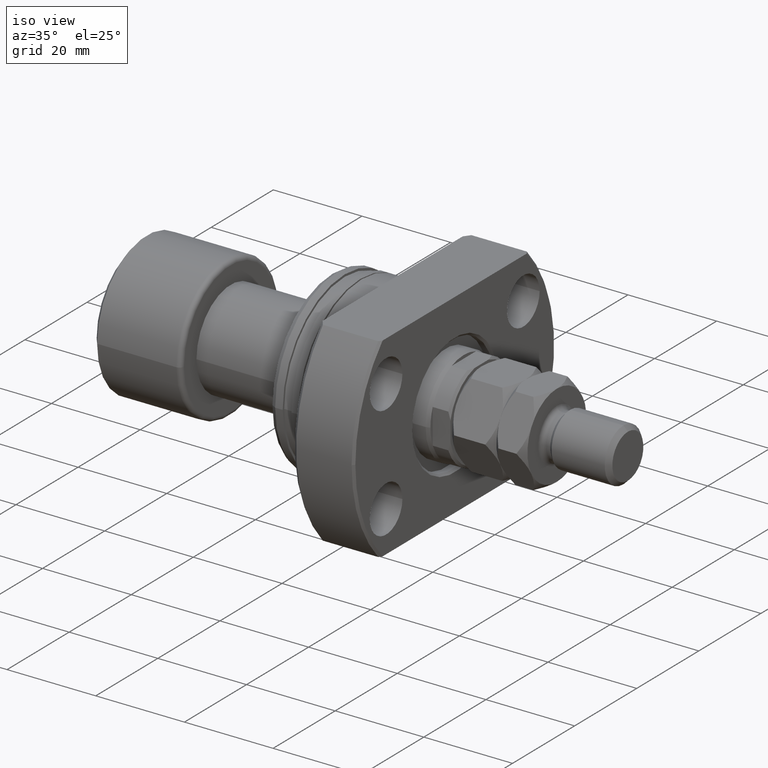
[diagram: clean part render]
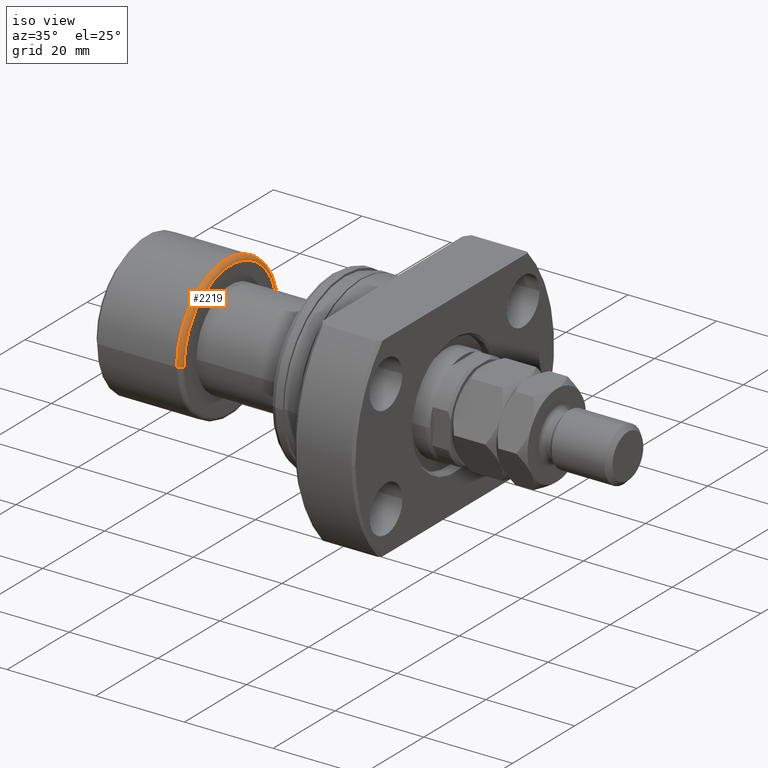
[diagram: same view with one face highlighted and labeled with its STEP entity id]
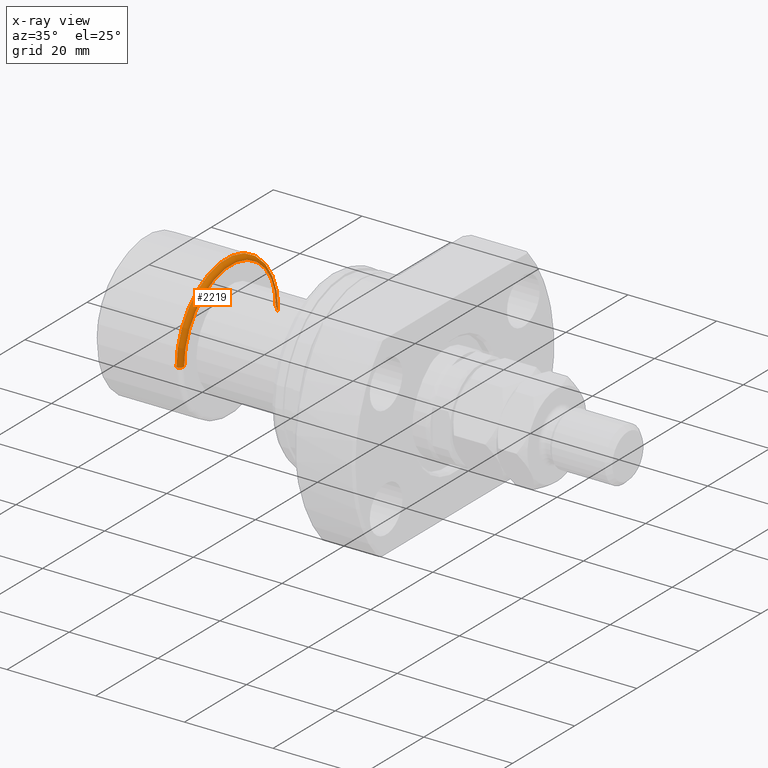
[diagram: x-ray of the same camera — body ghosted, the highlighted face saturated]
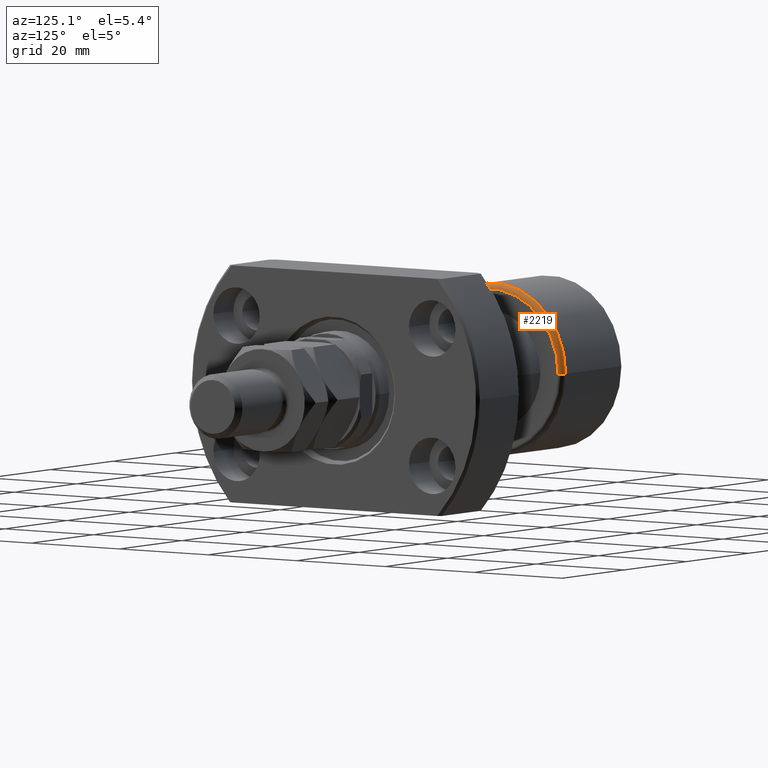
[diagram: same view with one face highlighted and labeled with its STEP entity id]
A machine part, iso view. The second image highlights one B-rep face of the part: STEP entity #2219.
The next image is the same camera in x-ray: the body ghosted, the highlighted face saturated — about 3% of this face is hidden behind the body in this view.
A second angle (auxiliary view) of the same face is appended — the face is thin or edge-on in the first view.
In plain terms, the highlighted toroidal blend (fillet) surface has major radius 15 mm and minor (blend) radius 1 mm.
Its self-contained STEP definition (entity closure, byte-faithful):
#93 = CARTESIAN_POINT ( 'NONE',  ( 19.39999999999999858, 15.00000000000000000, 1.836970198721029589E-15 ) ) ;
#218 = EDGE_LOOP ( 'NONE', ( #3324, #1871, #4602, #2331 ) ) ;
#246 = VERTEX_POINT ( 'NONE', #1280 ) ;
#323 = EDGE_CURVE ( 'NONE', #4531, #4362, #4610, .T. ) ;
#388 = CARTESIAN_POINT ( 'NONE',  ( 20.39999999999999858, 2.181866337020894116E-16, 0.000000000000000000 ) ) ;
#607 = CARTESIAN_POINT ( 'NONE',  ( 19.40000000000000213, -16.00000000000000000, 0.000000000000000000 ) ) ;
#941 = CARTESIAN_POINT ( 'NONE',  ( 19.39999999999999858, -15.00000000000000000, 0.000000000000000000 ) ) ;
#1154 = CIRCLE ( 'NONE', #1382, 15.00000000000000000 ) ;
#1280 = CARTESIAN_POINT ( 'NONE',  ( 20.39999999999999858, 15.00000000000000000, 1.898202538678397163E-15 ) ) ;
#1382 = AXIS2_PLACEMENT_3D ( 'NONE', #388, #2988, #4453 ) ;
#1387 = CARTESIAN_POINT ( 'NONE',  ( 20.39999999999999858, -15.00000000000000000, 0.000000000000000000 ) ) ;
#1588 = DIRECTION ( 'NONE',  ( 1.309811581274509052E-33, -1.224646799147353207E-16, 1.000000000000000000 ) ) ;
#1673 = FACE_OUTER_BOUND ( 'NONE', #218, .T. ) ;
#1843 = TOROIDAL_SURFACE ( 'NONE', #4548, 15.00000000000000000, 1.000000000000000888 ) ;
#1871 = ORIENTED_EDGE ( 'NONE', *, *, #3825, .T. ) ;
#2014 = CIRCLE ( 'NONE', #2789, 16.00000000000000000 ) ;
#2104 = DIRECTION ( 'NONE',  ( 0.000000000000000000, 0.000000000000000000, -1.000000000000000000 ) ) ;
#2219 = ADVANCED_FACE ( 'NONE', ( #1673 ), #1843, .T. ) ;
#2331 = ORIENTED_EDGE ( 'NONE', *, *, #323, .F. ) ;
#2581 = EDGE_CURVE ( 'NONE', #4531, #246, #1154, .T. ) ;
#2789 = AXIS2_PLACEMENT_3D ( 'NONE', #3955, #2867, #2939 ) ;
#2856 = EDGE_CURVE ( 'NONE', #4362, #3552, #2014, .T. ) ;
#2867 = DIRECTION ( 'NONE',  ( -1.000000000000000000, -1.069542322069065801E-17, -0.000000000000000000 ) ) ;
#2939 = DIRECTION ( 'NONE',  ( 0.000000000000000000, -1.000000000000000000, 0.000000000000000000 ) ) ;
#2988 = DIRECTION ( 'NONE',  ( -1.000000000000000000, -1.069542322069065801E-17, -0.000000000000000000 ) ) ;
#3078 = DIRECTION ( 'NONE',  ( 0.000000000000000000, -1.000000000000000000, -1.224646799147353454E-16 ) ) ;
#3145 = DIRECTION ( 'NONE',  ( 1.069542322069065801E-17, -1.000000000000000000, 0.000000000000000000 ) ) ;
#3255 = CIRCLE ( 'NONE', #4488, 1.000000000000000888 ) ;
#3324 = ORIENTED_EDGE ( 'NONE', *, *, #2581, .T. ) ;
#3552 = VERTEX_POINT ( 'NONE', #4587 ) ;
#3825 = EDGE_CURVE ( 'NONE', #246, #3552, #3255, .T. ) ;
#3898 = DIRECTION ( 'NONE',  ( -1.000000000000000000, 0.000000000000000000, 0.000000000000000000 ) ) ;
#3905 = DIRECTION ( 'NONE',  ( -1.000000000000000000, -1.069542322069065801E-17, -0.000000000000000000 ) ) ;
#3955 = CARTESIAN_POINT ( 'NONE',  ( 19.40000000000000213, 2.074912104813987675E-16, 0.000000000000000000 ) ) ;
#4362 = VERTEX_POINT ( 'NONE', #607 ) ;
#4380 = AXIS2_PLACEMENT_3D ( 'NONE', #941, #2104, #3898 ) ;
#4453 = DIRECTION ( 'NONE',  ( 0.000000000000000000, -1.000000000000000000, 0.000000000000000000 ) ) ;
#4488 = AXIS2_PLACEMENT_3D ( 'NONE', #93, #1588, #3078 ) ;
#4531 = VERTEX_POINT ( 'NONE', #1387 ) ;
#4548 = AXIS2_PLACEMENT_3D ( 'NONE', #4626, #3905, #3145 ) ;
#4587 = CARTESIAN_POINT ( 'NONE',  ( 19.40000000000000213, 16.00000000000000000, 1.959434878635765131E-15 ) ) ;
#4602 = ORIENTED_EDGE ( 'NONE', *, *, #2856, .F. ) ;
#4610 = CIRCLE ( 'NONE', #4380, 1.000000000000000888 ) ;
#4626 = CARTESIAN_POINT ( 'NONE',  ( 19.39999999999999858, 0.000000000000000000, 0.000000000000000000 ) ) ;